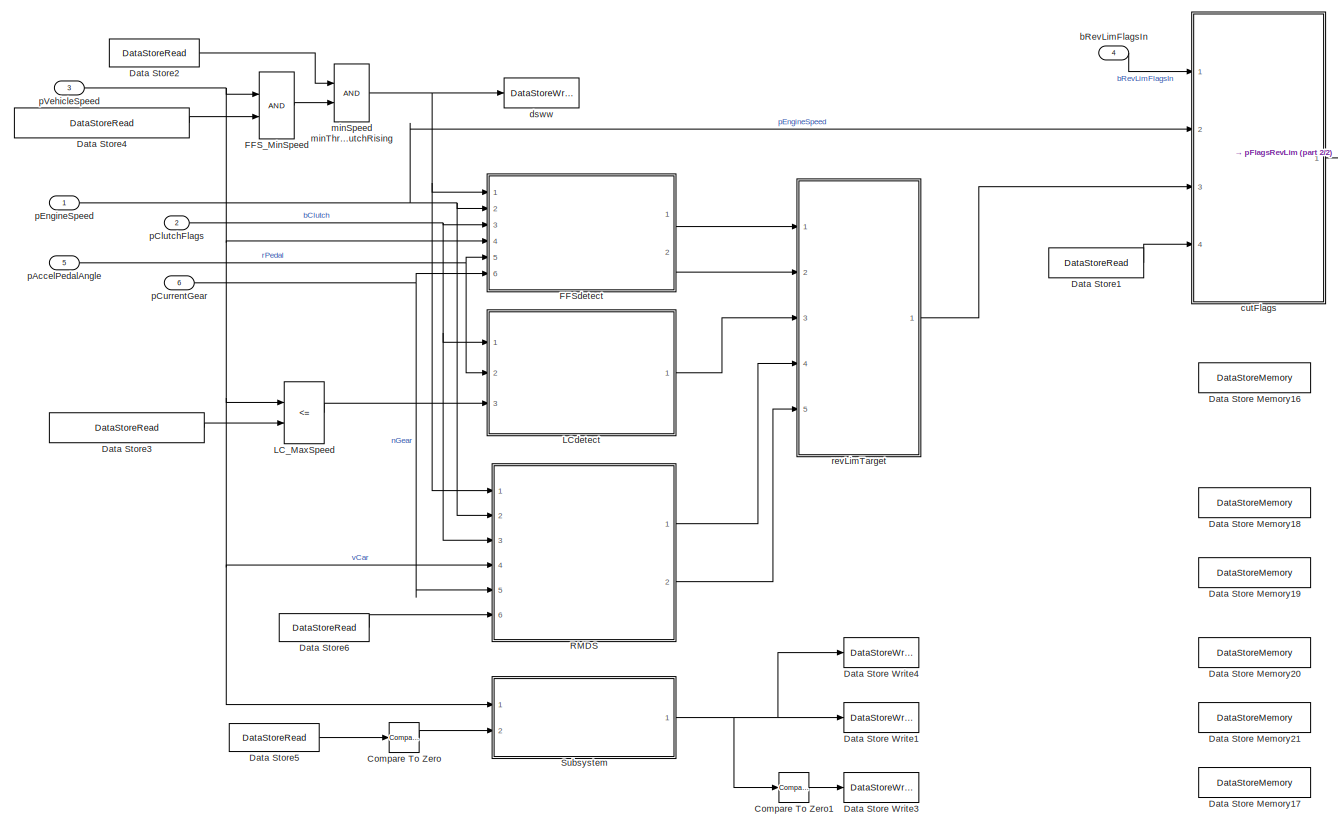
[diagram: root canvas - part 1/2, left side, full height]
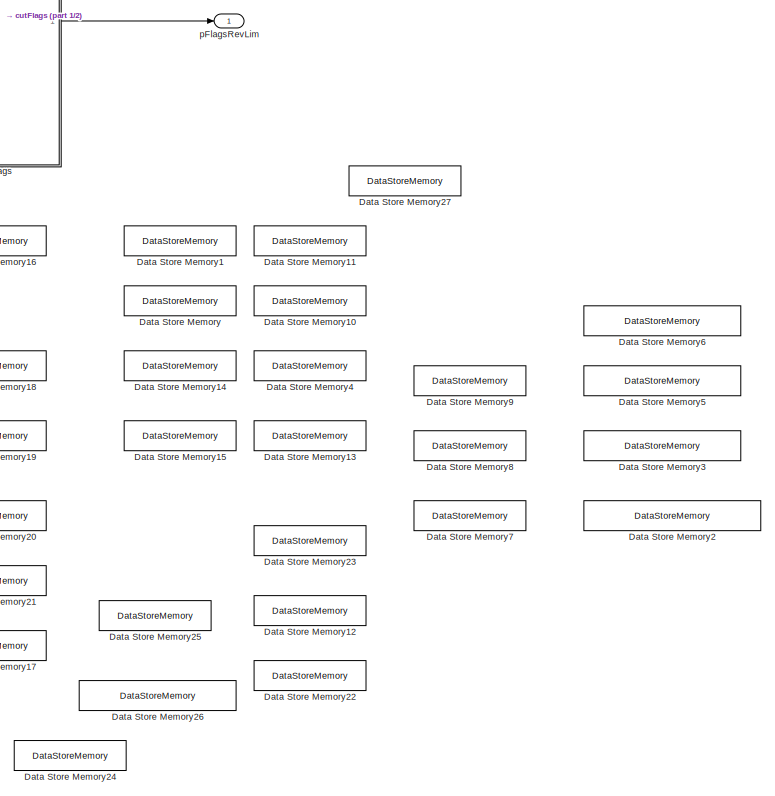
[diagram: root canvas - part 2/2, right side, full height]
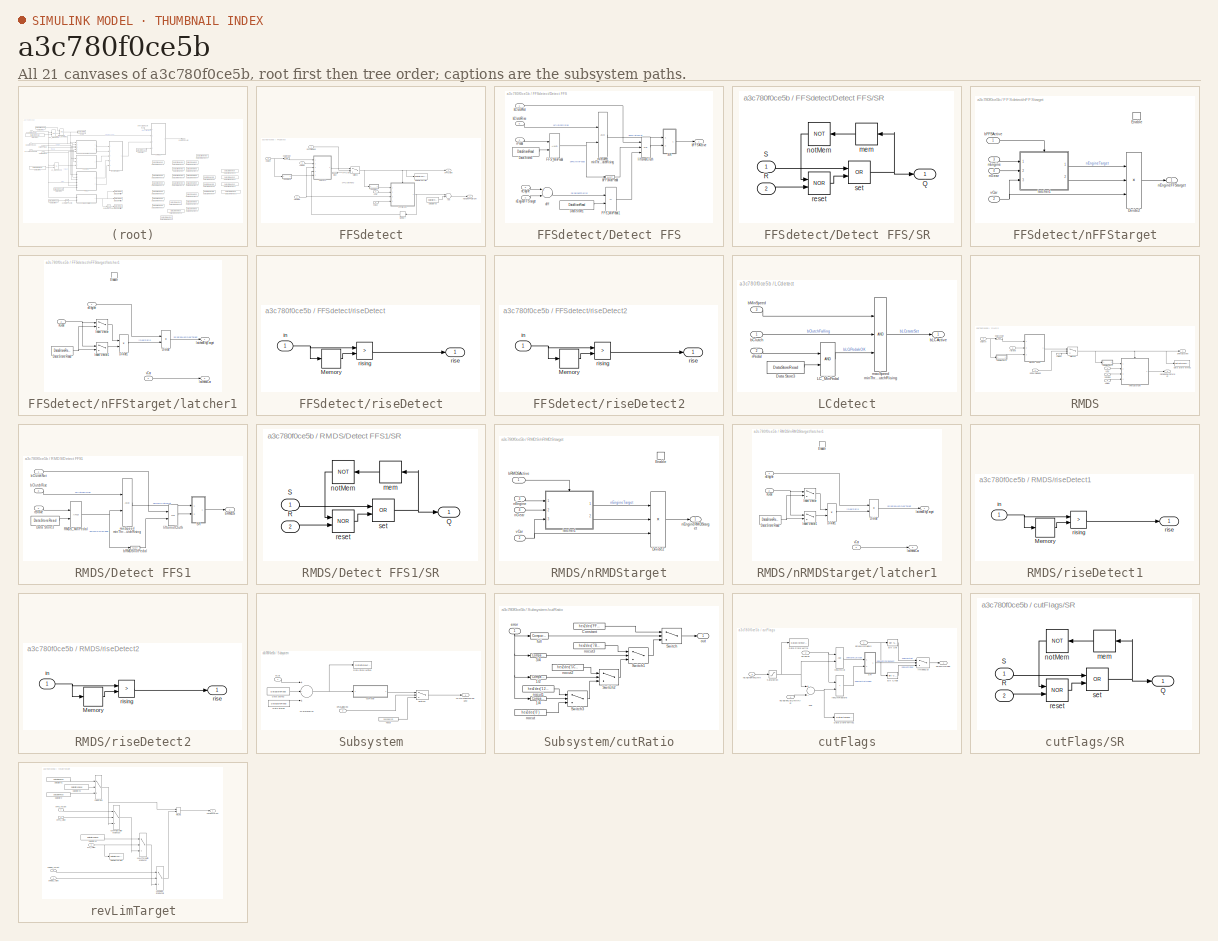
[diagram: thumbnail index - all 21 canvases of the model, root first then tree order]
MODEL slx_a3c780f0ce5b
KIND model
CONFIG AbsTol = auto
CONFIG EnableMultiTasking = on
CONFIG FixedStep = 0.001
CONFIG MaxStep = auto
CONFIG MinStep = auto
CONFIG RelTol = 1e-3
CONFIG SampleTimeConstraint = Unconstrained
CONFIG Solver = FixedStepAuto
CONFIG SolverName = FixedStepAuto
CONFIG StartTime = 0.0
CONFIG StopTime = 3
BLOCK [Reference] Compare To Zero  REF=simulink/Logic and Bit
Operations/Compare
To Zero
  Ports = [1, 1]
  SourceBlock = simulink/Logic and Bit\nOperations/Compare\nTo Zero
  SourceProductBaseCode = SL
  SourceProductName = Simulink
  SourceType = Compare To Zero
BLOCK [Reference] Compare To Zero1  REF=simulink/Logic and Bit
Operations/Compare
To Zero
  Ports = [1, 1]
  SourceBlock = simulink/Logic and Bit\nOperations/Compare\nTo Zero
  SourceProductBaseCode = SL
  SourceProductName = Simulink
  SourceType = Compare To Zero
BLOCK [DataStoreMemory] Data Store Memory
  DataStoreName = DefaultRedLineCut
  InitialValue = 6700
  OutDataTypeStr = single
  ShowAdditionalParam = off
  SignalType = real
BLOCK [DataStoreMemory] Data Store Memory1
  DataStoreName = DefaultRedLineHyst
  InitialValue = 100
  OutDataTypeStr = single
  ReadBeforeWriteMsg = warning
  ShowAdditionalParam = off
  WriteAfterReadMsg = error
  WriteAfterWriteMsg = error
BLOCK [DataStoreMemory] Data Store Memory10
  DataStoreName = RevLimCut
  InitialValue = 2500
  OutDataTypeStr = single
  ReadBeforeWriteMsg = warning
  ShowAdditionalParam = off
  WriteAfterReadMsg = warning
  WriteAfterWriteMsg = warning
BLOCK [DataStoreMemory] Data Store Memory11
  DataStoreName = RevLimResume
  InitialValue = 2500
  OutDataTypeStr = single
  ReadBeforeWriteMsg = warning
  ShowAdditionalParam = off
  WriteAfterReadMsg = warning
  WriteAfterWriteMsg = warning
BLOCK [DataStoreMemory] Data Store Memory12
  DataStoreName = bFFSengaged
  OutDataTypeStr = boolean
  ReadBeforeWriteMsg = warning
  ShowAdditionalParam = off
  WriteAfterReadMsg = warning
  WriteAfterWriteMsg = warning
BLOCK [DataStoreMemory] Data Store Memory13
  DataStoreName = bLCengaged
  OutDataTypeStr = boolean
  ReadBeforeWriteMsg = warning
  ShowAdditionalParam = off
  WriteAfterReadMsg = warning
  WriteAfterWriteMsg = warning
BLOCK [DataStoreMemory] Data Store Memory14
  DataStoreName = ValetModeRevLim
  InitialValue = 4000
  OutDataTypeStr = single
  ShowAdditionalParam = off
  SignalType = real
BLOCK [DataStoreMemory] Data Store Memory15
  DataStoreName = bValetMode
  OutDataTypeStr = uint8
  ReadBeforeWriteMsg = warning
  ShowAdditionalParam = off
  WriteAfterReadMsg = warning
  WriteAfterWriteMsg = warning
BLOCK [DataStoreMemory] Data Store Memory16
  DataStoreName = bPLSLRequest
  OutDataTypeStr = boolean
  ReadBeforeWriteMsg = warning
  ShowAdditionalParam = off
  WriteAfterReadMsg = warning
  WriteAfterWriteMsg = warning
BLOCK [DataStoreMemory] Data Store Memory17
  DataStoreName = bPLSLcutting
  OutDataTypeStr = boolean
  ReadBeforeWriteMsg = warning
  ShowAdditionalParam = off
  WriteAfterReadMsg = warning
  WriteAfterWriteMsg = warning
BLOCK [DataStoreMemory] Data Store Memory18
  DataStoreName = VPLSL_Adjust
  OutDataTypeStr = single
  ReadBeforeWriteMsg = warning
  ShowAdditionalParam = off
  WriteAfterReadMsg = warning
  WriteAfterWriteMsg = warning
BLOCK [DataStoreMemory] Data Store Memory19
  DataStoreName = NPLSL_Limit
  InitialValue = 25
  OutDataTypeStr = single
  ReadBeforeWriteMsg = warning
  ShowAdditionalParam = off
  WriteAfterReadMsg = warning
  WriteAfterWriteMsg = warning
BLOCK [DataStoreMemory] Data Store Memory2
  DataStoreName = DefaultFlatFootShiftSpeedThreshold
  InitialValue = 25
  OutDataTypeStr = single
  ReadBeforeWriteMsg = warning
  ShowAdditionalParam = off
  WriteAfterReadMsg = warning
  WriteAfterWriteMsg = warning
BLOCK [DataStoreMemory] Data Store Memory20
  DataStoreName = nPLSLCutRatio
  OutDataTypeStr = uint16
  ReadBeforeWriteMsg = warning
  ShowAdditionalParam = off
  WriteAfterReadMsg = warning
  WriteAfterWriteMsg = warning
BLOCK [DataStoreMemory] Data Store Memory21
  DataStoreName = nINJCutPattern
  OutDataTypeStr = uint16
  ReadBeforeWriteMsg = warning
  ShowAdditionalParam = off
  WriteAfterReadMsg = warning
  WriteAfterWriteMsg = warning
BLOCK [DataStoreMemory] Data Store Memory22
  DataStoreName = bFFSallowed
  OutDataTypeStr = boolean
  ReadBeforeWriteMsg = warning
  ShowAdditionalParam = off
  WriteAfterReadMsg = warning
  WriteAfterWriteMsg = warning
BLOCK [DataStoreMemory] Data Store Memory23
  DataStoreName = bFFSenabled
  OutDataTypeStr = boolean
  ReadBeforeWriteMsg = warning
  ShowAdditionalParam = off
  WriteAfterReadMsg = warning
  WriteAfterWriteMsg = warning
BLOCK [DataStoreMemory] Data Store Memory24
  DataStoreName = vPLSLerror
  OutDataTypeStr = single
  ReadBeforeWriteMsg = warning
  ShowAdditionalParam = off
  WriteAfterReadMsg = warning
  WriteAfterWriteMsg = warning
BLOCK [DataStoreMemory] Data Store Memory25
  DataStoreName = bRMDSengaged
  OutDataTypeStr = boolean
  ReadBeforeWriteMsg = warning
  ShowAdditionalParam = off
  WriteAfterReadMsg = warning
  WriteAfterWriteMsg = warning
BLOCK [DataStoreMemory] Data Store Memory26
  DataStoreName = RMDSminBrake
  InitialValue = 30
  OutDataTypeStr = single
  ReadBeforeWriteMsg = warning
  ShowAdditionalParam = off
  WriteAfterReadMsg = warning
  WriteAfterWriteMsg = warning
BLOCK [DataStoreMemory] Data Store Memory27
  DataStoreName = rBrake
  InitialValue = 23
  OutDataTypeStr = single
  ReadBeforeWriteMsg = warning
  ShowAdditionalParam = off
  WriteAfterReadMsg = warning
  WriteAfterWriteMsg = warning
BLOCK [DataStoreMemory] Data Store Memory3
  DataStoreName = FFSMinimumThrottle
  InitialValue = 85
  OutDataTypeStr = single
  ReadBeforeWriteMsg = warning
  ShowAdditionalParam = off
  WriteAfterReadMsg = warning
  WriteAfterWriteMsg = warning
BLOCK [DataStoreMemory] Data Store Memory4
  DataStoreName = LaunchControlCut
  InitialValue = 2500
  OutDataTypeStr = single
  ReadBeforeWriteMsg = warning
  ShowAdditionalParam = off
  WriteAfterReadMsg = warning
  WriteAfterWriteMsg = warning
BLOCK [DataStoreMemory] Data Store Memory5
  DataStoreName = LCMinimumThrottle
  InitialValue = 40
  OutDataTypeStr = single
  ReadBeforeWriteMsg = warning
  ShowAdditionalParam = off
  WriteAfterReadMsg = warning
  WriteAfterWriteMsg = warning
BLOCK [DataStoreMemory] Data Store Memory6
  DataStoreName = DefaultLaunchControlSpeedMax
  InitialValue = 3
  OutDataTypeStr = single
  ReadBeforeWriteMsg = warning
  ShowAdditionalParam = off
  WriteAfterReadMsg = warning
  WriteAfterWriteMsg = warning
BLOCK [DataStoreMemory] Data Store Memory7
  DataStoreName = GearRatios
  Dimensions = 6
  InitialValue = [3.636,2.235,1.521,1.137,0.971,0.756]
  OutDataTypeStr = single
  ReadBeforeWriteMsg = warning
  ShowAdditionalParam = off
  WriteAfterReadMsg = warning
  WriteAfterWriteMsg = warning
BLOCK [DataStoreMemory] Data Store Memory8
  DataStoreName = nFFSdelta
  InitialValue = 300
  OutDataTypeStr = single
  ReadBeforeWriteMsg = warning
  ShowAdditionalParam = off
  WriteAfterReadMsg = warning
  WriteAfterWriteMsg = warning
BLOCK [DataStoreMemory] Data Store Memory9
  DataStoreName = nFFSdeltaBite
  InitialValue = 100
  OutDataTypeStr = single
  ReadBeforeWriteMsg = warning
  ShowAdditionalParam = off
  WriteAfterReadMsg = warning
  WriteAfterWriteMsg = warning
BLOCK [DataStoreWrite] Data Store Write1
  DataStoreName = nINJCutPattern
  Ports = [1]
BLOCK [DataStoreWrite] Data Store Write3
  DataStoreName = bPLSLcutting
  Ports = [1]
BLOCK [DataStoreWrite] Data Store Write4
  DataStoreName = nPLSLCutRatio
  Ports = [1]
BLOCK [DataStoreRead] Data Store1
  DataStoreName = DefaultRedLineHyst
  Ports = [0, 1]
BLOCK [DataStoreRead] Data Store2
  DataStoreElements = bFFSenabled
  DataStoreName = bFFSenabled
  Ports = [0, 1]
BLOCK [DataStoreRead] Data Store3
  DataStoreName = DefaultLaunchControlSpeedMax
  Ports = [0, 1]
BLOCK [DataStoreRead] Data Store4
  DataStoreName = DefaultFlatFootShiftSpeedThreshold
  Ports = [0, 1]
BLOCK [DataStoreRead] Data Store5
  DataStoreElements = bPLSLRequest
  DataStoreName = bPLSLRequest
  Ports = [0, 1]
BLOCK [DataStoreRead] Data Store6
  DataStoreElements = rBrake
  DataStoreName = rBrake
  Ports = [0, 1]
BLOCK [RelationalOperator] FFS_MinSpeed
  InputSameDT = off
  OutDataTypeStr = boolean
  Ports = [2, 1]
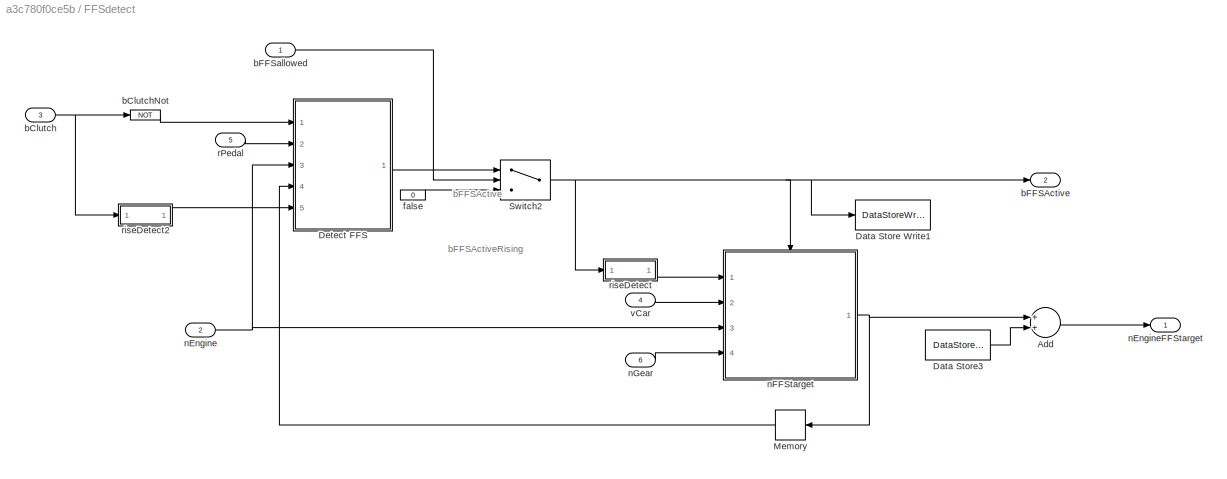
BLOCK [SubSystem] FFSdetect
  Ports = [6, 2]
  RequestExecContextInheritance = off
  Variant = off
BLOCK [Sum] FFSdetect/Add
  InputSameDT = off
  OutDataTypeStr = Inherit: Inherit via internal rule
  Ports = [2, 1]
  SaturateOnIntegerOverflow = off
BLOCK [DataStoreWrite] FFSdetect/Data Store Write1
  DataStoreName = bFFSengaged
  Ports = [1]
BLOCK [DataStoreRead] FFSdetect/Data Store3
  DataStoreName = nFFSdelta
  Ports = [0, 1]
BLOCK [SubSystem] FFSdetect/Detect FFS
  Ports = [5, 1]
  RequestExecContextInheritance = off
  Variant = off
BLOCK [DataStoreRead] FFSdetect/Detect FFS/Data Store1
  DataStoreName = nFFSdeltaBite
  Ports = [0, 1]
BLOCK [DataStoreRead] FFSdetect/Detect FFS/Data Store3
  DataStoreName = FFSMinimumThrottle
  Ports = [0, 1]
BLOCK [RelationalOperator] FFSdetect/Detect FFS/FFS_MinPedal
  InputSameDT = off
  OutDataTypeStr = boolean
  Ports = [2, 1]
BLOCK [RelationalOperator] FFSdetect/Detect FFS/FFS_MinPedal1
  InputSameDT = off
  Operator = <=
  OutDataTypeStr = boolean
  Ports = [2, 1]
BLOCK [SubSystem] FFSdetect/Detect FFS/SR
  Ports = [2, 1]
  RequestExecContextInheritance = off
  Variant = off
BLOCK [Outport] FFSdetect/Detect FFS/SR/Q
  IconDisplay = Port number
BLOCK [Inport] FFSdetect/Detect FFS/SR/R
  IconDisplay = Port number
  Port = 2
BLOCK [Inport] FFSdetect/Detect FFS/SR/S
  IconDisplay = Port number
BLOCK [Memory] FFSdetect/Detect FFS/SR/mem
BLOCK [Logic] FFSdetect/Detect FFS/SR/notMem
  AllPortsSameDT = off
  Operator = NOT
  OutDataTypeStr = boolean
  Ports = [1, 1]
BLOCK [Logic] FFSdetect/Detect FFS/SR/reset
  AllPortsSameDT = off
  Operator = NOR
  OutDataTypeStr = boolean
  Ports = [2, 1]
BLOCK [Logic] FFSdetect/Detect FFS/SR/set
  AllPortsSameDT = off
  Operator = OR
  OutDataTypeStr = boolean
  Ports = [2, 1]
BLOCK [Inport] FFSdetect/Detect FFS/bClutchNot
  IconDisplay = Port number
BLOCK [Inport] FFSdetect/Detect FFS/bClutchRise
  IconDisplay = Port number
  Port = 5
BLOCK [Outport] FFSdetect/Detect FFS/bFFSActive
  IconDisplay = Port number
BLOCK [Logic] FFSdetect/Detect FFS/bFFsNotPedal
  AllPortsSameDT = off
  Operator = NOT
  OutDataTypeStr = boolean
  Ports = [1, 1]
BLOCK [Sum] FFSdetect/Detect FFS/diff
  InputSameDT = off
  Inputs = +-
  OutDataTypeStr = Inherit: Inherit via internal rule
  Ports = [2, 1]
  SaturateOnIntegerOverflow = off
BLOCK [Logic] FFSdetect/Detect FFS/liftornotCluth 
  AllPortsSameDT = off
  Inputs = 3
  Operator = OR
  OutDataTypeStr = boolean
  Ports = [3, 1]
BLOCK [Logic] FFSdetect/Detect FFS/minSpeed minThrottle clutchRising
  AllPortsSameDT = off
  OutDataTypeStr = boolean
  Ports = [2, 1]
BLOCK [Inport] FFSdetect/Detect FFS/nEngine
  IconDisplay = Port number
  Port = 3
BLOCK [Inport] FFSdetect/Detect FFS/nEngineFFStarget
  IconDisplay = Port number
  Port = 4
BLOCK [Inport] FFSdetect/Detect FFS/rPedal
  IconDisplay = Port number
  Port = 2
BLOCK [Memory] FFSdetect/Memory
BLOCK [Switch] FFSdetect/Switch2
  Criteria = u2 > Threshold
  InputSameDT = off
  SaturateOnIntegerOverflow = off
BLOCK [Inport] FFSdetect/bClutch
  IconDisplay = Port number
  Port = 3
BLOCK [Logic] FFSdetect/bClutchNot
  AllPortsSameDT = off
  Operator = NOT
  OutDataTypeStr = boolean
  Ports = [1, 1]
BLOCK [Outport] FFSdetect/bFFSActive
  IconDisplay = Port number
  InitialOutput = [0]
  OutputWhenDisabled = reset
  Port = 2
BLOCK [Inport] FFSdetect/bFFSallowed
  IconDisplay = Port number
BLOCK [Constant] FFSdetect/false
  OutDataTypeStr = boolean
  Value = 0
BLOCK [Inport] FFSdetect/nEngine
  IconDisplay = Port number
  Port = 2
BLOCK [Outport] FFSdetect/nEngineFFStarget
  IconDisplay = Port number
  InitialOutput = [0]
BLOCK [SubSystem] FFSdetect/nFFStarget
  Ports = [4, 1, 1]
  RTWSystemCode = Inline
  RequestExecContextInheritance = off
  Variant = off
BLOCK [Product] FFSdetect/nFFStarget/Divide2
  InputSameDT = off
  Inputs = */*
  OutDataTypeStr = Inherit: Inherit via internal rule
  Ports = [3, 1]
  RndMeth = Floor
  SaturateOnIntegerOverflow = off
BLOCK [EnablePort] FFSdetect/nFFStarget/Enable
  Ports = []
BLOCK [Inport] FFSdetect/nFFStarget/bFFSActive
  IconDisplay = Port number
BLOCK [SubSystem] FFSdetect/nFFStarget/latcher1
  Ports = [3, 2, 1]
  RequestExecContextInheritance = off
  Variant = off
BLOCK [DataStoreRead] FFSdetect/nFFStarget/latcher1/Data Store Read
  DataStoreElements = GearRatios(:)
  DataStoreName = GearRatios
  Ports = [0, 1]
BLOCK [Product] FFSdetect/nFFStarget/latcher1/Divide
  InputSameDT = off
  Inputs = **
  OutDataTypeStr = Inherit: Inherit via internal rule
  Ports = [2, 1]
  RndMeth = Floor
  SaturateOnIntegerOverflow = off
BLOCK [Product] FFSdetect/nFFStarget/latcher1/Divide1
  InputSameDT = off
  Inputs = */
  OutDataTypeStr = Inherit: Inherit via internal rule
  Ports = [2, 1]
  RndMeth = Floor
  SaturateOnIntegerOverflow = off
BLOCK [EnablePort] FFSdetect/nFFStarget/latcher1/Enable
  Ports = []
BLOCK [MultiPortSwitch] FFSdetect/nFFStarget/latcher1/Index Vector
  DataPortOrder = Zero-based contiguous
  InputSameDT = off
  Inputs = 1
  Ports = [2, 1]
  SaturateOnIntegerOverflow = off
  zeroidx = on
BLOCK [MultiPortSwitch] FFSdetect/nFFStarget/latcher1/Index Vector1
  InputSameDT = off
  Inputs = 1
  Ports = [2, 1]
  SaturateOnIntegerOverflow = off
BLOCK [Outport] FFSdetect/nFFStarget/latcher1/latchedEngTarget
  IconDisplay = Port number
BLOCK [Outport] FFSdetect/nFFStarget/latcher1/latchedvCar
  IconDisplay = Port number
  Port = 2
BLOCK [Inport] FFSdetect/nFFStarget/latcher1/nEngine
  IconDisplay = Port number
BLOCK [Inport] FFSdetect/nFFStarget/latcher1/nGear
  IconDisplay = Port number
  Port = 2
BLOCK [Inport] FFSdetect/nFFStarget/latcher1/vCar
  IconDisplay = Port number
  Port = 3
BLOCK [Inport] FFSdetect/nFFStarget/nEngine
  IconDisplay = Port number
  Port = 3
BLOCK [Outport] FFSdetect/nFFStarget/nEngineFFStarget
  IconDisplay = Port number
BLOCK [Inport] FFSdetect/nFFStarget/nGear
  IconDisplay = Port number
  Port = 4
BLOCK [Inport] FFSdetect/nFFStarget/vCar
  IconDisplay = Port number
  Port = 2
BLOCK [Inport] FFSdetect/nGear
  IconDisplay = Port number
  Port = 6
BLOCK [Inport] FFSdetect/rPedal
  IconDisplay = Port number
  Port = 5
BLOCK [SubSystem] FFSdetect/riseDetect
  Ports = [1, 1]
  RequestExecContextInheritance = off
  Variant = off
BLOCK [Memory] FFSdetect/riseDetect/Memory
BLOCK [Inport] FFSdetect/riseDetect/in
  IconDisplay = Port number
BLOCK [Outport] FFSdetect/riseDetect/rise
  IconDisplay = Port number
BLOCK [RelationalOperator] FFSdetect/riseDetect/rising
  InputSameDT = off
  Operator = >
  OutDataTypeStr = boolean
  Ports = [2, 1]
  RndMeth = Simplest
BLOCK [SubSystem] FFSdetect/riseDetect2
  Ports = [1, 1]
  RequestExecContextInheritance = off
  Variant = off
BLOCK [Memory] FFSdetect/riseDetect2/Memory
BLOCK [Inport] FFSdetect/riseDetect2/in
  IconDisplay = Port number
BLOCK [Outport] FFSdetect/riseDetect2/rise
  IconDisplay = Port number
BLOCK [RelationalOperator] FFSdetect/riseDetect2/rising
  InputSameDT = off
  Operator = >
  OutDataTypeStr = boolean
  Ports = [2, 1]
  RndMeth = Simplest
BLOCK [Inport] FFSdetect/vCar
  IconDisplay = Port number
  Port = 4
BLOCK [RelationalOperator] LC_MaxSpeed
  InputSameDT = off
  Operator = <=
  OutDataTypeStr = boolean
  Ports = [2, 1]
BLOCK [SubSystem] LCdetect
  Ports = [3, 1]
  RequestExecContextInheritance = off
  Variant = off
BLOCK [DataStoreRead] LCdetect/Data Store3
  DataStoreName = LCMinimumThrottle
  Ports = [0, 1]
BLOCK [RelationalOperator] LCdetect/LC_MinPedal
  InputSameDT = off
  OutDataTypeStr = boolean
  Ports = [2, 1]
BLOCK [Inport] LCdetect/bClutch
  IconDisplay = Port number
BLOCK [Outport] LCdetect/bLCActive
  IconDisplay = Port number
  InitialOutput = [0]
  OutputWhenDisabled = reset
BLOCK [Inport] LCdetect/bMinSpeed
  IconDisplay = Port number
  Port = 3
BLOCK [Logic] LCdetect/maxSpeed minThrottle clutchRising
  AllPortsSameDT = off
  Inputs = 3
  OutDataTypeStr = boolean
  Ports = [3, 1]
BLOCK [Inport] LCdetect/rPedal
  IconDisplay = Port number
  Port = 2
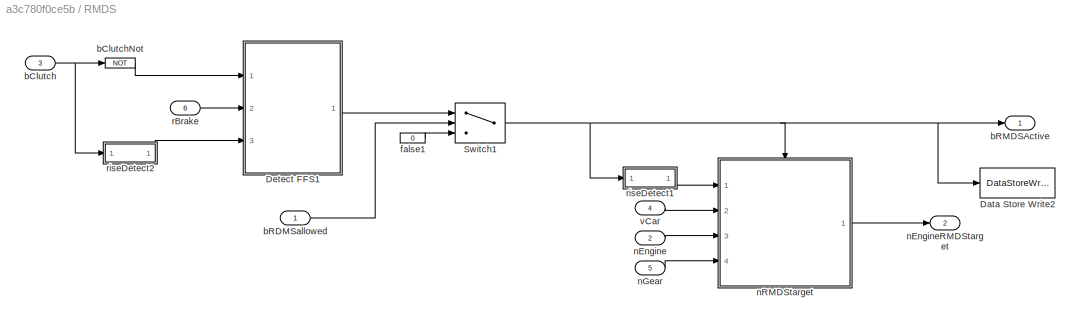
BLOCK [SubSystem] RMDS
  Ports = [6, 2]
  RequestExecContextInheritance = off
  Variant = off
BLOCK [DataStoreWrite] RMDS/Data Store Write2
  DataStoreName = bRMDSengaged
  Ports = [1]
BLOCK [SubSystem] RMDS/Detect FFS1
  Ports = [3, 1]
  RequestExecContextInheritance = off
  Variant = off
BLOCK [DataStoreRead] RMDS/Detect FFS1/Data Store3
  DataStoreName = RMDSminBrake
  Ports = [0, 1]
BLOCK [RelationalOperator] RMDS/Detect FFS1/RMDS_MinPedal
  InputSameDT = off
  OutDataTypeStr = boolean
  Ports = [2, 1]
BLOCK [SubSystem] RMDS/Detect FFS1/SR
  Ports = [2, 1]
  RequestExecContextInheritance = off
  Variant = off
BLOCK [Outport] RMDS/Detect FFS1/SR/Q
  IconDisplay = Port number
BLOCK [Inport] RMDS/Detect FFS1/SR/R
  IconDisplay = Port number
  Port = 2
BLOCK [Inport] RMDS/Detect FFS1/SR/S
  IconDisplay = Port number
BLOCK [Memory] RMDS/Detect FFS1/SR/mem
BLOCK [Logic] RMDS/Detect FFS1/SR/notMem
  AllPortsSameDT = off
  Operator = NOT
  OutDataTypeStr = boolean
  Ports = [1, 1]
BLOCK [Logic] RMDS/Detect FFS1/SR/reset
  AllPortsSameDT = off
  Operator = NOR
  OutDataTypeStr = boolean
  Ports = [2, 1]
BLOCK [Logic] RMDS/Detect FFS1/SR/set
  AllPortsSameDT = off
  Operator = OR
  OutDataTypeStr = boolean
  Ports = [2, 1]
BLOCK [Inport] RMDS/Detect FFS1/bClutchNot
  IconDisplay = Port number
BLOCK [Inport] RMDS/Detect FFS1/bClutchRise
  IconDisplay = Port number
  Port = 3
BLOCK [Outport] RMDS/Detect FFS1/bRMDS
  IconDisplay = Port number
BLOCK [Logic] RMDS/Detect FFS1/bRMDSnotPedal
  AllPortsSameDT = off
  Operator = NOT
  OutDataTypeStr = boolean
  Ports = [1, 1]
BLOCK [Logic] RMDS/Detect FFS1/liftornotCluth 
  AllPortsSameDT = off
  Operator = OR
  OutDataTypeStr = boolean
  Ports = [2, 1]
BLOCK [Logic] RMDS/Detect FFS1/minSpeed minThrottle clutchRising
  AllPortsSameDT = off
  OutDataTypeStr = boolean
  Ports = [2, 1]
BLOCK [Inport] RMDS/Detect FFS1/rBrake
  IconDisplay = Port number
  Port = 2
BLOCK [Switch] RMDS/Switch1
  Criteria = u2 > Threshold
  InputSameDT = off
  SaturateOnIntegerOverflow = off
BLOCK [Inport] RMDS/bClutch
  IconDisplay = Port number
  Port = 3
BLOCK [Logic] RMDS/bClutchNot
  AllPortsSameDT = off
  Operator = NOT
  OutDataTypeStr = boolean
  Ports = [1, 1]
BLOCK [Inport] RMDS/bRDMSallowed
  IconDisplay = Port number
BLOCK [Outport] RMDS/bRMDSActive
  IconDisplay = Port number
  InitialOutput = [0]
  OutputWhenDisabled = reset
BLOCK [Constant] RMDS/false1
  OutDataTypeStr = boolean
  Value = 0
BLOCK [Inport] RMDS/nEngine
  IconDisplay = Port number
  Port = 2
BLOCK [Outport] RMDS/nEngineRMDStarget
  IconDisplay = Port number
  InitialOutput = [0]
  Port = 2
BLOCK [Inport] RMDS/nGear
  IconDisplay = Port number
  Port = 5
BLOCK [SubSystem] RMDS/nRMDStarget
  Ports = [4, 1, 1]
  RTWSystemCode = Inline
  RequestExecContextInheritance = off
  Variant = off
BLOCK [Product] RMDS/nRMDStarget/Divide2
  InputSameDT = off
  Inputs = */*
  OutDataTypeStr = Inherit: Inherit via internal rule
  Ports = [3, 1]
  RndMeth = Floor
  SaturateOnIntegerOverflow = off
BLOCK [EnablePort] RMDS/nRMDStarget/Enable
  Ports = []
BLOCK [Inport] RMDS/nRMDStarget/bRMDSActive
  IconDisplay = Port number
BLOCK [SubSystem] RMDS/nRMDStarget/latcher1
  Ports = [3, 2, 1]
  RequestExecContextInheritance = off
  Variant = off
BLOCK [DataStoreRead] RMDS/nRMDStarget/latcher1/Data Store Read
  DataStoreElements = GearRatios(:)
  DataStoreName = GearRatios
  Ports = [0, 1]
BLOCK [Product] RMDS/nRMDStarget/latcher1/Divide
  InputSameDT = off
  Inputs = **
  OutDataTypeStr = Inherit: Inherit via internal rule
  Ports = [2, 1]
  RndMeth = Floor
  SaturateOnIntegerOverflow = off
BLOCK [Product] RMDS/nRMDStarget/latcher1/Divide1
  InputSameDT = off
  Inputs = */
  OutDataTypeStr = Inherit: Inherit via internal rule
  Ports = [2, 1]
  RndMeth = Floor
  SaturateOnIntegerOverflow = off
BLOCK [EnablePort] RMDS/nRMDStarget/latcher1/Enable
  Ports = []
BLOCK [MultiPortSwitch] RMDS/nRMDStarget/latcher1/Index Vector
  InputSameDT = off
  Inputs = 1
  Ports = [2, 1]
  SaturateOnIntegerOverflow = off
BLOCK [MultiPortSwitch] RMDS/nRMDStarget/latcher1/Index Vector1
  DataPortOrder = Zero-based contiguous
  InputSameDT = off
  Inputs = 1
  Ports = [2, 1]
  SaturateOnIntegerOverflow = off
BLOCK [Outport] RMDS/nRMDStarget/latcher1/latchedEngTarget
  IconDisplay = Port number
BLOCK [Outport] RMDS/nRMDStarget/latcher1/latchedvCar
  IconDisplay = Port number
  Port = 2
BLOCK [Inport] RMDS/nRMDStarget/latcher1/nEngine
  IconDisplay = Port number
BLOCK [Inport] RMDS/nRMDStarget/latcher1/nGear
  IconDisplay = Port number
  Port = 2
BLOCK [Inport] RMDS/nRMDStarget/latcher1/vCar
  IconDisplay = Port number
  Port = 3
BLOCK [Inport] RMDS/nRMDStarget/nEngine
  IconDisplay = Port number
  Port = 3
BLOCK [Outport] RMDS/nRMDStarget/nEngineRMDStarget
  IconDisplay = Port number
BLOCK [Inport] RMDS/nRMDStarget/nGear
  IconDisplay = Port number
  Port = 4
BLOCK [Inport] RMDS/nRMDStarget/vCar
  IconDisplay = Port number
  Port = 2
BLOCK [Inport] RMDS/rBrake
  IconDisplay = Port number
  Port = 6
BLOCK [SubSystem] RMDS/riseDetect1
  Ports = [1, 1]
  RequestExecContextInheritance = off
  Variant = off
BLOCK [Memory] RMDS/riseDetect1/Memory
BLOCK [Inport] RMDS/riseDetect1/in
  IconDisplay = Port number
BLOCK [Outport] RMDS/riseDetect1/rise
  IconDisplay = Port number
BLOCK [RelationalOperator] RMDS/riseDetect1/rising
  InputSameDT = off
  Operator = >
  OutDataTypeStr = boolean
  Ports = [2, 1]
  RndMeth = Simplest
BLOCK [SubSystem] RMDS/riseDetect2
  Ports = [1, 1]
  RequestExecContextInheritance = off
  Variant = off
BLOCK [Memory] RMDS/riseDetect2/Memory
BLOCK [Inport] RMDS/riseDetect2/in
  IconDisplay = Port number
BLOCK [Outport] RMDS/riseDetect2/rise
  IconDisplay = Port number
BLOCK [RelationalOperator] RMDS/riseDetect2/rising
  InputSameDT = off
  Operator = >
  OutDataTypeStr = boolean
  Ports = [2, 1]
  RndMeth = Simplest
BLOCK [Inport] RMDS/vCar
  IconDisplay = Port number
  Port = 4
BLOCK [SubSystem] Subsystem
  Ports = [2, 1]
  RequestExecContextInheritance = off
  Variant = off
BLOCK [DataStoreWrite] Subsystem/Data Store Write1
  DataStoreElements = vPLSLerror
  DataStoreName = vPLSLerror
  Ports = [1]
BLOCK [DataStoreRead] Subsystem/Data Store2
  DataStoreName = NPLSL_Limit
  Ports = [0, 1]
BLOCK [DataStoreRead] Subsystem/Data Store5
  DataStoreElements = VPLSL_Adjust
  DataStoreName = VPLSL_Adjust
  Ports = [0, 1]
BLOCK [Switch] Subsystem/Switch2
  Criteria = u2 > Threshold
  InputSameDT = off
  SaturateOnIntegerOverflow = off
BLOCK [Inport] Subsystem/bPLSLallowed
  IconDisplay = Port number
  Port = 2
BLOCK [SubSystem] Subsystem/cutRatio
  Ports = [1, 1]
  RequestExecContextInheritance = off
  Variant = off
BLOCK [Reference] Subsystem/cutRatio/1//2  REF=simulink/Logic and Bit
Operations/Compare
To Constant
  Ports = [1, 1]
  SourceBlock = simulink/Logic and Bit\nOperations/Compare\nTo Constant
  SourceProductBaseCode = SL
  SourceProductName = Simulink
  SourceType = Compare To Constant
BLOCK [Reference] Subsystem/cutRatio/1//4  REF=simulink/Logic and Bit
Operations/Compare
To Constant
  Ports = [1, 1]
  SourceBlock = simulink/Logic and Bit\nOperations/Compare\nTo Constant
  SourceProductBaseCode = SL
  SourceProductName = Simulink
  SourceType = Compare To Constant
BLOCK [Reference] Subsystem/cutRatio/3//4  REF=simulink/Logic and Bit
Operations/Compare
To Constant
  Ports = [1, 1]
  SourceBlock = simulink/Logic and Bit\nOperations/Compare\nTo Constant
  SourceProductBaseCode = SL
  SourceProductName = Simulink
  SourceType = Compare To Constant
BLOCK [Constant] Subsystem/cutRatio/Constant
  OutDataTypeStr = uint16
  Value = hex2dec('FFFF')
BLOCK [Switch] Subsystem/cutRatio/Switch
  Criteria = u2 > Threshold
  InputSameDT = off
  SaturateOnIntegerOverflow = off
BLOCK [Switch] Subsystem/cutRatio/Switch1
  Criteria = u2 > Threshold
  InputSameDT = off
  SaturateOnIntegerOverflow = off
BLOCK [Switch] Subsystem/cutRatio/Switch2
  Criteria = u2 > Threshold
  InputSameDT = off
  SaturateOnIntegerOverflow = off
BLOCK [Switch] Subsystem/cutRatio/Switch3
  Criteria = u2 > Threshold
  InputSameDT = off
  SaturateOnIntegerOverflow = off
BLOCK [Inport] Subsystem/cutRatio/error
  IconDisplay = Port number
BLOCK [Reference] Subsystem/cutRatio/full  REF=simulink/Logic and Bit
Operations/Compare
To Constant
  Ports = [1, 1]
  SourceBlock = simulink/Logic and Bit\nOperations/Compare\nTo Constant
  SourceProductBaseCode = SL
  SourceProductName = Simulink
  SourceType = Compare To Constant
BLOCK [Constant] Subsystem/cutRatio/nocut
  OutDataTypeStr = uint16
  Value = hex2dec('0')
BLOCK [Constant] Subsystem/cutRatio/nocut1
  OutDataTypeStr = uint16
  Value = hex2dec('1248')
BLOCK [Constant] Subsystem/cutRatio/nocut2
  OutDataTypeStr = uint16
  Value = hex2dec('5C5C')
BLOCK [Constant] Subsystem/cutRatio/nocut3
  OutDataTypeStr = uint16
  Value = hex2dec('7BCE')
BLOCK [Outport] Subsystem/cutRatio/out
  IconDisplay = Port number
BLOCK [Outport] Subsystem/nCutRatioPLSLRequest
  IconDisplay = Port number
  InitialOutput = [0]
  OutDataTypeStr = uint16
  OutputWhenDisabled = reset
BLOCK [Constant] Subsystem/nocut
  OutDataTypeStr = uint16
  Value = hex2dec('0')
BLOCK [Inport] Subsystem/vCar
  IconDisplay = Port number
BLOCK [Sum] Subsystem/vCarPLSLerror
  InputSameDT = off
  Inputs = +-+
  OutDataTypeStr = Inherit: Inherit via internal rule
  Ports = [3, 1]
  SaturateOnIntegerOverflow = off
BLOCK [Inport] bRevLimFlagsIn
  IconDisplay = Port number
  OutDataTypeStr = uint8
  Port = 4
BLOCK [SubSystem] cutFlags
  Ports = [4, 1]
  RequestExecContextInheritance = off
  Variant = off
BLOCK [Reference] cutFlags/Bit Clear  REF=simulink/Logic and Bit
Operations/Bit Clear
  Ports = [1, 1]
  SourceBlock = simulink/Logic and Bit\nOperations/Bit Clear
  SourceProductBaseCode = SL
  SourceProductName = Simulink
  SourceType = Bit Clear
BLOCK [Reference] cutFlags/Bit Set  REF=simulink/Logic and Bit
Operations/Bit Set
  Ports = [1, 1]
  SourceBlock = simulink/Logic and Bit\nOperations/Bit Set
  SourceProductBaseCode = SL
  SourceProductName = Simulink
  SourceType = Bit Set
BLOCK [DataStoreWrite] cutFlags/Data Store Write
  DataStoreName = RevLimCut
  Ports = [1]
BLOCK [DataStoreWrite] cutFlags/Data Store Write1
  DataStoreName = RevLimResume
  Ports = [1]
BLOCK [SubSystem] cutFlags/SR
  Ports = [2, 1]
  RequestExecContextInheritance = off
  Variant = off
BLOCK [Outport] cutFlags/SR/Q
  IconDisplay = Port number
BLOCK [Inport] cutFlags/SR/R
  IconDisplay = Port number
  Port = 2
BLOCK [Inport] cutFlags/SR/S
  IconDisplay = Port number
BLOCK [Memory] cutFlags/SR/mem
BLOCK [Logic] cutFlags/SR/notMem
  AllPortsSameDT = off
  Operator = NOT
  OutDataTypeStr = boolean
  Ports = [1, 1]
BLOCK [Logic] cutFlags/SR/reset
  AllPortsSameDT = off
  Operator = NOR
  OutDataTypeStr = boolean
  Ports = [2, 1]
BLOCK [Logic] cutFlags/SR/set
  AllPortsSameDT = off
  Operator = OR
  OutDataTypeStr = boolean
  Ports = [2, 1]
BLOCK [Saturate] cutFlags/Saturation
  InputPortMap = u0
  LowerLimit = 2100
  Ports = [1, 1]
  UpperLimit = 6800
BLOCK [Outport] cutFlags/bRevLimFlags
  IconDisplay = Port number
BLOCK [Inport] cutFlags/bRevLimFlagsIn
  IconDisplay = Port number
  OutDataTypeStr = uint8
BLOCK [Switch] cutFlags/ifNeedCut
  Criteria = u2 > Threshold
  InputSameDT = off
  SaturateOnIntegerOverflow = off
BLOCK [Inport] cutFlags/nEngine
  IconDisplay = Port number
  Port = 2
BLOCK [Inport] cutFlags/nEngineCutLimitHyst
  IconDisplay = Port number
  Port = 4
BLOCK [Inport] cutFlags/nEngineRevLimit
  IconDisplay = Port number
  Port = 3
BLOCK [RelationalOperator] cutFlags/revLimCut
  InputSameDT = off
  OutDataTypeStr = boolean
  Ports = [2, 1]
BLOCK [RelationalOperator] cutFlags/revLimRestore
  InputSameDT = off
  Operator = <
  OutDataTypeStr = boolean
  Ports = [2, 1]
BLOCK [Sum] cutFlags/sub
  InputSameDT = off
  Inputs = +-
  OutDataTypeStr = Inherit: Inherit via internal rule
  Ports = [2, 1]
  SaturateOnIntegerOverflow = off
BLOCK [DataStoreWrite] dsww
  DataStoreName = bFFSallowed
  Ports = [1]
BLOCK [Logic] minSpeed minThrottle clutchRising
  AllPortsSameDT = off
  OutDataTypeStr = boolean
  Ports = [2, 1]
BLOCK [Inport] pAccelPedalAngle
  IconDisplay = Port number
  OutDataTypeStr = single
  Port = 5
BLOCK [Inport] pClutchFlags
  IconDisplay = Port number
  OutDataTypeStr = uint8
  Port = 2
BLOCK [Inport] pCurrentGear
  IconDisplay = Port number
  OutDataTypeStr = uint8
  Port = 6
BLOCK [Inport] pEngineSpeed
  IconDisplay = Port number
  Interpolate = off
  OutDataTypeStr = single
BLOCK [Outport] pFlagsRevLim
  IconDisplay = Port number
  OutDataTypeStr = uint8
  SignalName = pFlagsRevLim
BLOCK [Inport] pVehicleSpeed
  IconDisplay = Port number
  OutDataTypeStr = single
  Port = 3
BLOCK [SubSystem] revLimTarget
  Ports = [5, 1]
  RequestExecContextInheritance = off
  Variant = off
BLOCK [DataStoreRead] revLimTarget/Data Store
  DataStoreName = DefaultRedLineCut
  Ports = [0, 1]
BLOCK [DataStoreWrite] revLimTarget/Data Store Write2
  DataStoreName = bLCengaged
  Ports = [1]
BLOCK [DataStoreRead] revLimTarget/Data Store1
  DataStoreName = ValetModeRevLim
  Ports = [0, 1]
BLOCK [DataStoreRead] revLimTarget/Data Store2
  DataStoreElements = LaunchControlCut
  DataStoreName = LaunchControlCut
  Ports = [0, 1]
BLOCK [DataStoreRead] revLimTarget/Data Store3
  DataStoreElements = bValetMode
  DataStoreName = bValetMode
  Ports = [0, 1]
BLOCK [Inport] revLimTarget/bFFS_Active
  IconDisplay = Port number
  Port = 2
BLOCK [Inport] revLimTarget/bLC_Active
  IconDisplay = Port number
  Port = 3
BLOCK [Inport] revLimTarget/bRMDS_Active
  IconDisplay = Port number
  Port = 4
BLOCK [MinMax] revLimTarget/minLim1
  InputSameDT = off
  Inputs = 2
  OutDataTypeStr = single
  Ports = [2, 1]
  SaturateOnIntegerOverflow = off
BLOCK [Outport] revLimTarget/nEngineTarget
  IconDisplay = Port number
BLOCK [Inport] revLimTarget/nFFS_Target
  IconDisplay = Port number
BLOCK [Inport] revLimTarget/nRMDS_Target
  IconDisplay = Port number
  Port = 5
BLOCK [Switch] revLimTarget/use FFStarget for engineCut
  Criteria = u2 > Threshold
  InputSameDT = off
  OutDataTypeStr = single
  SaturateOnIntegerOverflow = off
BLOCK [Switch] revLimTarget/use LCTarget for engineCut
  Criteria = u2 > Threshold
  InputSameDT = off
  OutDataTypeStr = single
  SaturateOnIntegerOverflow = off
BLOCK [Switch] revLimTarget/use RMDS EngineCut1
  Criteria = u2 > Threshold
  InputSameDT = off
  OutDataTypeStr = single
  SaturateOnIntegerOverflow = off
BLOCK [Switch] revLimTarget/valetOrReg
  Criteria = u2 > Threshold
  InputSameDT = off
  OutDataTypeStr = single
  SaturateOnIntegerOverflow = off
ANNOTATION FFSdetect: bFFSActive
ANNOTATION FFSdetect: bFFSActiveRising
LINE Compare To Zero1:1 -> Data Store Write3:1
LINE Compare To Zero:1 -> Subsystem:2
LINE Data Store1:1 -> cutFlags:4
LINE Data Store2:1 -> minSpeed minThrottle clutchRising:1
LINE Data Store3:1 -> LC_MaxSpeed:2
LINE Data Store4:1 -> FFS_MinSpeed:2
LINE Data Store5:1 -> Compare To Zero:1
LINE Data Store6:1 -> RMDS:6
LINE FFS_MinSpeed:1 -> minSpeed minThrottle clutchRising:2
LINE FFSdetect/Add:1 -> FFSdetect/nEngineFFStarget:1
LINE FFSdetect/Data Store3:1 -> FFSdetect/Add:2
LINE FFSdetect/Detect FFS/Data Store1:1 -> FFSdetect/Detect FFS/FFS_MinPedal1:2
LINE FFSdetect/Detect FFS/Data Store3:1 -> FFSdetect/Detect FFS/FFS_MinPedal:2
LINE FFSdetect/Detect FFS/FFS_MinPedal1:1 -> FFSdetect/Detect FFS/liftornotCluth :3
NET FFSdetect/Detect FFS/FFS_MinPedal:1 -> FFSdetect/Detect FFS/bFFsNotPedal:1, FFSdetect/Detect FFS/minSpeed minThrottle clutchRising:2
LINE FFSdetect/Detect FFS/SR/R:1 -> FFSdetect/Detect FFS/SR/reset:2
LINE FFSdetect/Detect FFS/SR/S:1 -> FFSdetect/Detect FFS/SR/set:1
LINE FFSdetect/Detect FFS/SR/mem:1 -> FFSdetect/Detect FFS/SR/notMem:1
LINE FFSdetect/Detect FFS/SR/notMem:1 -> FFSdetect/Detect FFS/SR/reset:1
LINE FFSdetect/Detect FFS/SR/reset:1 -> FFSdetect/Detect FFS/SR/set:2
NET FFSdetect/Detect FFS/SR/set:1 -> FFSdetect/Detect FFS/SR/Q:1, FFSdetect/Detect FFS/SR/mem:1
LINE FFSdetect/Detect FFS/SR:1 -> FFSdetect/Detect FFS/bFFSActive:1
LINE FFSdetect/Detect FFS/bClutchNot:1 -> FFSdetect/Detect FFS/liftornotCluth :1
LINE FFSdetect/Detect FFS/bClutchRise:1 -> FFSdetect/Detect FFS/minSpeed minThrottle clutchRising:1
LINE FFSdetect/Detect FFS/bFFsNotPedal:1 -> FFSdetect/Detect FFS/liftornotCluth :2
LINE FFSdetect/Detect FFS/diff:1 -> FFSdetect/Detect FFS/FFS_MinPedal1:1
LINE FFSdetect/Detect FFS/liftornotCluth :1 -> FFSdetect/Detect FFS/SR:2
LINE FFSdetect/Detect FFS/minSpeed minThrottle clutchRising:1 -> FFSdetect/Detect FFS/SR:1
LINE FFSdetect/Detect FFS/nEngine:1 -> FFSdetect/Detect FFS/diff:1
LINE FFSdetect/Detect FFS/nEngineFFStarget:1 -> FFSdetect/Detect FFS/diff:2
LINE FFSdetect/Detect FFS/rPedal:1 -> FFSdetect/Detect FFS/FFS_MinPedal:1
LINE FFSdetect/Detect FFS:1 -> FFSdetect/Switch2:1
LINE FFSdetect/Memory:1 -> FFSdetect/Detect FFS:4
NET FFSdetect/Switch2:1 -> FFSdetect/Data Store Write1:1, FFSdetect/bFFSActive:1, FFSdetect/nFFStarget:enable, FFSdetect/riseDetect:1
NET FFSdetect/bClutch:1 -> FFSdetect/bClutchNot:1, FFSdetect/riseDetect2:1
LINE FFSdetect/bClutchNot:1 -> FFSdetect/Detect FFS:1
LINE FFSdetect/bFFSallowed:1 -> FFSdetect/Switch2:2
LINE FFSdetect/false:1 -> FFSdetect/Switch2:3
NET FFSdetect/nEngine:1 -> FFSdetect/Detect FFS:3, FFSdetect/nFFStarget:3
LINE FFSdetect/nFFStarget/Divide2:1 -> FFSdetect/nFFStarget/nEngineFFStarget:1
LINE FFSdetect/nFFStarget/bFFSActive:1 -> FFSdetect/nFFStarget/latcher1:enable
NET FFSdetect/nFFStarget/latcher1/Data Store Read:1 -> FFSdetect/nFFStarget/latcher1/Index Vector1:2, FFSdetect/nFFStarget/latcher1/Index Vector:2
LINE FFSdetect/nFFStarget/latcher1/Divide1:1 -> FFSdetect/nFFStarget/latcher1/Divide:2
LINE FFSdetect/nFFStarget/latcher1/Divide:1 -> FFSdetect/nFFStarget/latcher1/latchedEngTarget:1
LINE FFSdetect/nFFStarget/latcher1/Index Vector1:1 -> FFSdetect/nFFStarget/latcher1/Divide1:2
LINE FFSdetect/nFFStarget/latcher1/Index Vector:1 -> FFSdetect/nFFStarget/latcher1/Divide1:1
LINE FFSdetect/nFFStarget/latcher1/nEngine:1 -> FFSdetect/nFFStarget/latcher1/Divide:1
NET FFSdetect/nFFStarget/latcher1/nGear:1 -> FFSdetect/nFFStarget/latcher1/Index Vector1:1, FFSdetect/nFFStarget/latcher1/Index Vector:1
LINE FFSdetect/nFFStarget/latcher1/vCar:1 -> FFSdetect/nFFStarget/latcher1/latchedvCar:1
LINE FFSdetect/nFFStarget/latcher1:1 -> FFSdetect/nFFStarget/Divide2:1
LINE FFSdetect/nFFStarget/latcher1:2 -> FFSdetect/nFFStarget/Divide2:2
LINE FFSdetect/nFFStarget/nEngine:1 -> FFSdetect/nFFStarget/latcher1:1
LINE FFSdetect/nFFStarget/nGear:1 -> FFSdetect/nFFStarget/latcher1:2
NET FFSdetect/nFFStarget/vCar:1 -> FFSdetect/nFFStarget/Divide2:3, FFSdetect/nFFStarget/latcher1:3
NET FFSdetect/nFFStarget:1 -> FFSdetect/Add:1, FFSdetect/Memory:1
LINE FFSdetect/nGear:1 -> FFSdetect/nFFStarget:4
LINE FFSdetect/rPedal:1 -> FFSdetect/Detect FFS:2
LINE FFSdetect/riseDetect/Memory:1 -> FFSdetect/riseDetect/rising:2
NET FFSdetect/riseDetect/in:1 -> FFSdetect/riseDetect/Memory:1, FFSdetect/riseDetect/rising:1
LINE FFSdetect/riseDetect/rising:1 -> FFSdetect/riseDetect/rise:1
LINE FFSdetect/riseDetect2/Memory:1 -> FFSdetect/riseDetect2/rising:2
NET FFSdetect/riseDetect2/in:1 -> FFSdetect/riseDetect2/Memory:1, FFSdetect/riseDetect2/rising:1
LINE FFSdetect/riseDetect2/rising:1 -> FFSdetect/riseDetect2/rise:1
LINE FFSdetect/riseDetect2:1 -> FFSdetect/Detect FFS:5
LINE FFSdetect/riseDetect:1 -> FFSdetect/nFFStarget:1
LINE FFSdetect/vCar:1 -> FFSdetect/nFFStarget:2
LINE FFSdetect:1 -> revLimTarget:1
LINE FFSdetect:2 -> revLimTarget:2
LINE LC_MaxSpeed:1 -> LCdetect:3
LINE LCdetect/Data Store3:1 -> LCdetect/LC_MinPedal:2
LINE LCdetect/LC_MinPedal:1 -> LCdetect/maxSpeed minThrottle clutchRising:3
LINE LCdetect/bClutch:1 -> LCdetect/maxSpeed minThrottle clutchRising:2
LINE LCdetect/bMinSpeed:1 -> LCdetect/maxSpeed minThrottle clutchRising:1
LINE LCdetect/maxSpeed minThrottle clutchRising:1 -> LCdetect/bLCActive:1
LINE LCdetect/rPedal:1 -> LCdetect/LC_MinPedal:1
LINE LCdetect:1 -> revLimTarget:3
LINE RMDS/Detect FFS1/Data Store3:1 -> RMDS/Detect FFS1/RMDS_MinPedal:2
NET RMDS/Detect FFS1/RMDS_MinPedal:1 -> RMDS/Detect FFS1/bRMDSnotPedal:1, RMDS/Detect FFS1/minSpeed minThrottle clutchRising:2
LINE RMDS/Detect FFS1/SR/R:1 -> RMDS/Detect FFS1/SR/reset:2
LINE RMDS/Detect FFS1/SR/S:1 -> RMDS/Detect FFS1/SR/set:1
LINE RMDS/Detect FFS1/SR/mem:1 -> RMDS/Detect FFS1/SR/notMem:1
LINE RMDS/Detect FFS1/SR/notMem:1 -> RMDS/Detect FFS1/SR/reset:1
LINE RMDS/Detect FFS1/SR/reset:1 -> RMDS/Detect FFS1/SR/set:2
NET RMDS/Detect FFS1/SR/set:1 -> RMDS/Detect FFS1/SR/Q:1, RMDS/Detect FFS1/SR/mem:1
LINE RMDS/Detect FFS1/SR:1 -> RMDS/Detect FFS1/bRMDS:1
LINE RMDS/Detect FFS1/bClutchNot:1 -> RMDS/Detect FFS1/liftornotCluth :1
LINE RMDS/Detect FFS1/bClutchRise:1 -> RMDS/Detect FFS1/minSpeed minThrottle clutchRising:1
LINE RMDS/Detect FFS1/bRMDSnotPedal:1 -> RMDS/Detect FFS1/liftornotCluth :2
LINE RMDS/Detect FFS1/liftornotCluth :1 -> RMDS/Detect FFS1/SR:2
LINE RMDS/Detect FFS1/minSpeed minThrottle clutchRising:1 -> RMDS/Detect FFS1/SR:1
LINE RMDS/Detect FFS1/rBrake:1 -> RMDS/Detect FFS1/RMDS_MinPedal:1
LINE RMDS/Detect FFS1:1 -> RMDS/Switch1:1
NET RMDS/Switch1:1 -> RMDS/Data Store Write2:1, RMDS/bRMDSActive:1, RMDS/nRMDStarget:enable, RMDS/riseDetect1:1
NET RMDS/bClutch:1 -> RMDS/bClutchNot:1, RMDS/riseDetect2:1
LINE RMDS/bClutchNot:1 -> RMDS/Detect FFS1:1
LINE RMDS/bRDMSallowed:1 -> RMDS/Switch1:2
LINE RMDS/false1:1 -> RMDS/Switch1:3
LINE RMDS/nEngine:1 -> RMDS/nRMDStarget:3
LINE RMDS/nGear:1 -> RMDS/nRMDStarget:4
LINE RMDS/nRMDStarget/Divide2:1 -> RMDS/nRMDStarget/nEngineRMDStarget:1
LINE RMDS/nRMDStarget/bRMDSActive:1 -> RMDS/nRMDStarget/latcher1:enable
NET RMDS/nRMDStarget/latcher1/Data Store Read:1 -> RMDS/nRMDStarget/latcher1/Index Vector1:2, RMDS/nRMDStarget/latcher1/Index Vector:2
LINE RMDS/nRMDStarget/latcher1/Divide1:1 -> RMDS/nRMDStarget/latcher1/Divide:2
LINE RMDS/nRMDStarget/latcher1/Divide:1 -> RMDS/nRMDStarget/latcher1/latchedEngTarget:1
LINE RMDS/nRMDStarget/latcher1/Index Vector1:1 -> RMDS/nRMDStarget/latcher1/Divide1:2
LINE RMDS/nRMDStarget/latcher1/Index Vector:1 -> RMDS/nRMDStarget/latcher1/Divide1:1
LINE RMDS/nRMDStarget/latcher1/nEngine:1 -> RMDS/nRMDStarget/latcher1/Divide:1
NET RMDS/nRMDStarget/latcher1/nGear:1 -> RMDS/nRMDStarget/latcher1/Index Vector1:1, RMDS/nRMDStarget/latcher1/Index Vector:1
LINE RMDS/nRMDStarget/latcher1/vCar:1 -> RMDS/nRMDStarget/latcher1/latchedvCar:1
LINE RMDS/nRMDStarget/latcher1:1 -> RMDS/nRMDStarget/Divide2:1
LINE RMDS/nRMDStarget/latcher1:2 -> RMDS/nRMDStarget/Divide2:2
LINE RMDS/nRMDStarget/nEngine:1 -> RMDS/nRMDStarget/latcher1:1
LINE RMDS/nRMDStarget/nGear:1 -> RMDS/nRMDStarget/latcher1:2
NET RMDS/nRMDStarget/vCar:1 -> RMDS/nRMDStarget/Divide2:3, RMDS/nRMDStarget/latcher1:3
LINE RMDS/nRMDStarget:1 -> RMDS/nEngineRMDStarget:1
LINE RMDS/rBrake:1 -> RMDS/Detect FFS1:2
LINE RMDS/riseDetect1/Memory:1 -> RMDS/riseDetect1/rising:2
NET RMDS/riseDetect1/in:1 -> RMDS/riseDetect1/Memory:1, RMDS/riseDetect1/rising:1
LINE RMDS/riseDetect1/rising:1 -> RMDS/riseDetect1/rise:1
LINE RMDS/riseDetect1:1 -> RMDS/nRMDStarget:1
LINE RMDS/riseDetect2/Memory:1 -> RMDS/riseDetect2/rising:2
NET RMDS/riseDetect2/in:1 -> RMDS/riseDetect2/Memory:1, RMDS/riseDetect2/rising:1
LINE RMDS/riseDetect2/rising:1 -> RMDS/riseDetect2/rise:1
LINE RMDS/riseDetect2:1 -> RMDS/Detect FFS1:3
LINE RMDS/vCar:1 -> RMDS/nRMDStarget:2
LINE RMDS:1 -> revLimTarget:4
LINE RMDS:2 -> revLimTarget:5
LINE Subsystem/Data Store2:1 -> Subsystem/vCarPLSLerror:2
LINE Subsystem/Data Store5:1 -> Subsystem/vCarPLSLerror:3
LINE Subsystem/Switch2:1 -> Subsystem/nCutRatioPLSLRequest:1
LINE Subsystem/bPLSLallowed:1 -> Subsystem/Switch2:2
LINE Subsystem/cutRatio/1//2:1 -> Subsystem/cutRatio/Switch2:2
LINE Subsystem/cutRatio/1//4:1 -> Subsystem/cutRatio/Switch3:2
LINE Subsystem/cutRatio/3//4:1 -> Subsystem/cutRatio/Switch1:2
LINE Subsystem/cutRatio/Constant:1 -> Subsystem/cutRatio/Switch:1
LINE Subsystem/cutRatio/Switch1:1 -> Subsystem/cutRatio/Switch:3
LINE Subsystem/cutRatio/Switch2:1 -> Subsystem/cutRatio/Switch1:3
LINE Subsystem/cutRatio/Switch3:1 -> Subsystem/cutRatio/Switch2:3
LINE Subsystem/cutRatio/Switch:1 -> Subsystem/cutRatio/out:1
NET Subsystem/cutRatio/error:1 -> Subsystem/cutRatio/1//2:1, Subsystem/cutRatio/1//4:1, Subsystem/cutRatio/3//4:1, Subsystem/cutRatio/full:1
LINE Subsystem/cutRatio/full:1 -> Subsystem/cutRatio/Switch:2
LINE Subsystem/cutRatio/nocut1:1 -> Subsystem/cutRatio/Switch3:1
LINE Subsystem/cutRatio/nocut2:1 -> Subsystem/cutRatio/Switch2:1
LINE Subsystem/cutRatio/nocut3:1 -> Subsystem/cutRatio/Switch1:1
LINE Subsystem/cutRatio/nocut:1 -> Subsystem/cutRatio/Switch3:3
LINE Subsystem/cutRatio:1 -> Subsystem/Switch2:1
LINE Subsystem/nocut:1 -> Subsystem/Switch2:3
LINE Subsystem/vCar:1 -> Subsystem/vCarPLSLerror:1
NET Subsystem/vCarPLSLerror:1 -> Subsystem/Data Store Write1:1, Subsystem/cutRatio:1
NET Subsystem:1 -> Compare To Zero1:1, Data Store Write1:1, Data Store Write4:1
LINE bRevLimFlagsIn:1 -> cutFlags:1
LINE cutFlags/Bit Clear:1 -> cutFlags/ifNeedCut:3
LINE cutFlags/Bit Set:1 -> cutFlags/ifNeedCut:1
LINE cutFlags/SR/R:1 -> cutFlags/SR/reset:2
LINE cutFlags/SR/S:1 -> cutFlags/SR/set:1
LINE cutFlags/SR/mem:1 -> cutFlags/SR/notMem:1
LINE cutFlags/SR/notMem:1 -> cutFlags/SR/reset:1
LINE cutFlags/SR/reset:1 -> cutFlags/SR/set:2
NET cutFlags/SR/set:1 -> cutFlags/SR/Q:1, cutFlags/SR/mem:1
LINE cutFlags/SR:1 -> cutFlags/ifNeedCut:2
NET cutFlags/Saturation:1 -> cutFlags/Data Store Write:1, cutFlags/revLimCut:2, cutFlags/sub:1
NET cutFlags/bRevLimFlagsIn:1 -> cutFlags/Bit Clear:1, cutFlags/Bit Set:1
LINE cutFlags/ifNeedCut:1 -> cutFlags/bRevLimFlags:1
NET cutFlags/nEngine:1 -> cutFlags/revLimCut:1, cutFlags/revLimRestore:1
LINE cutFlags/nEngineCutLimitHyst:1 -> cutFlags/sub:2
LINE cutFlags/nEngineRevLimit:1 -> cutFlags/Saturation:1
LINE cutFlags/revLimCut:1 -> cutFlags/SR:1
LINE cutFlags/revLimRestore:1 -> cutFlags/SR:2
NET cutFlags/sub:1 -> cutFlags/Data Store Write1:1, cutFlags/revLimRestore:2
LINE cutFlags:1 -> pFlagsRevLim:1
NET minSpeed minThrottle clutchRising:1 -> FFSdetect:1, RMDS:1, dsww:1
NET pAccelPedalAngle:1 -> FFSdetect:5, LCdetect:2
NET pClutchFlags:1 -> FFSdetect:3, LCdetect:1, RMDS:3
NET pCurrentGear:1 -> FFSdetect:6, RMDS:5
NET pEngineSpeed:1 -> FFSdetect:2, RMDS:2, cutFlags:2
NET pVehicleSpeed:1 -> FFS_MinSpeed:1, FFSdetect:4, LC_MaxSpeed:1, RMDS:4, Subsystem:1
LINE revLimTarget/Data Store1:1 -> revLimTarget/valetOrReg:1
LINE revLimTarget/Data Store2:1 -> revLimTarget/use LCTarget for engineCut:1
LINE revLimTarget/Data Store3:1 -> revLimTarget/valetOrReg:2
LINE revLimTarget/Data Store:1 -> revLimTarget/valetOrReg:3
LINE revLimTarget/bFFS_Active:1 -> revLimTarget/use FFStarget for engineCut:2
NET revLimTarget/bLC_Active:1 -> revLimTarget/Data Store Write2:1, revLimTarget/use LCTarget for engineCut:2
LINE revLimTarget/bRMDS_Active:1 -> revLimTarget/use RMDS EngineCut1:2
LINE revLimTarget/minLim1:1 -> revLimTarget/nEngineTarget:1
LINE revLimTarget/nFFS_Target:1 -> revLimTarget/use FFStarget for engineCut:1
LINE revLimTarget/nRMDS_Target:1 -> revLimTarget/use RMDS EngineCut1:1
LINE revLimTarget/use FFStarget for engineCut:1 -> revLimTarget/use LCTarget for engineCut:3
LINE revLimTarget/use LCTarget for engineCut:1 -> revLimTarget/use RMDS EngineCut1:3
LINE revLimTarget/use RMDS EngineCut1:1 -> revLimTarget/minLim1:2
NET revLimTarget/valetOrReg:1 -> revLimTarget/minLim1:1, revLimTarget/use FFStarget for engineCut:3
LINE revLimTarget:1 -> cutFlags:3
note: NET lines group one-source signal fan-out (src -> all destinations, sorted); 1:1 wires keep LINE
